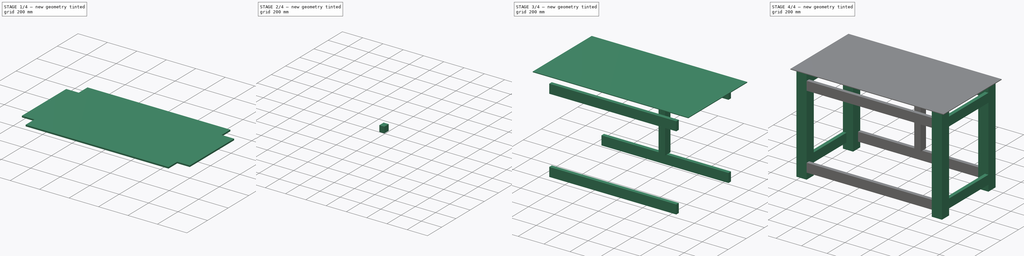
[diagram: build sequence overview — one tinted view per stage of 4, left to right]
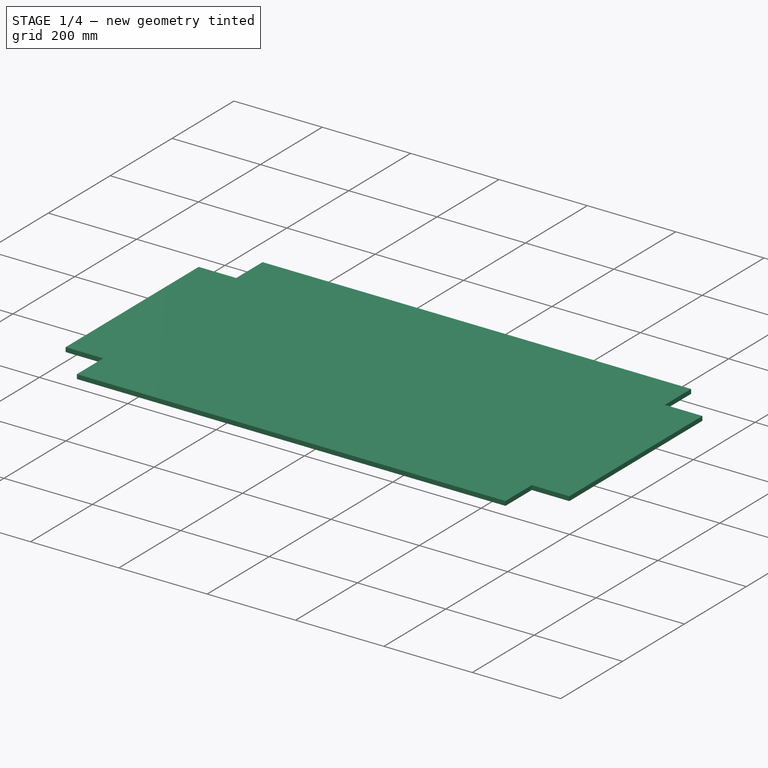
[diagram: stage 1 of 4 — iso view after this stage's code; geometry added in this stage tinted green]
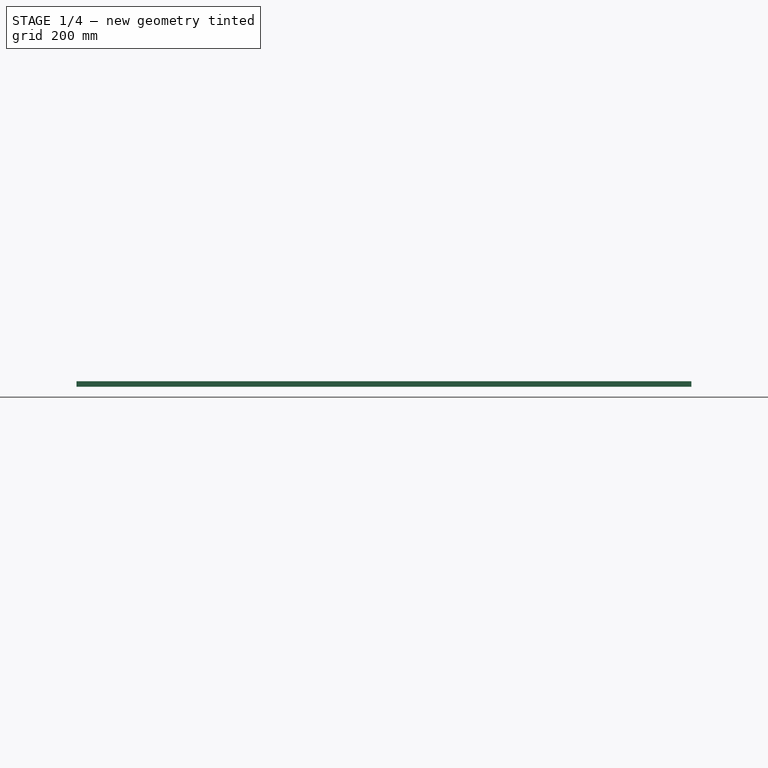
[diagram: stage 1 of 4 — front view after this stage's code; geometry added in this stage tinted green]
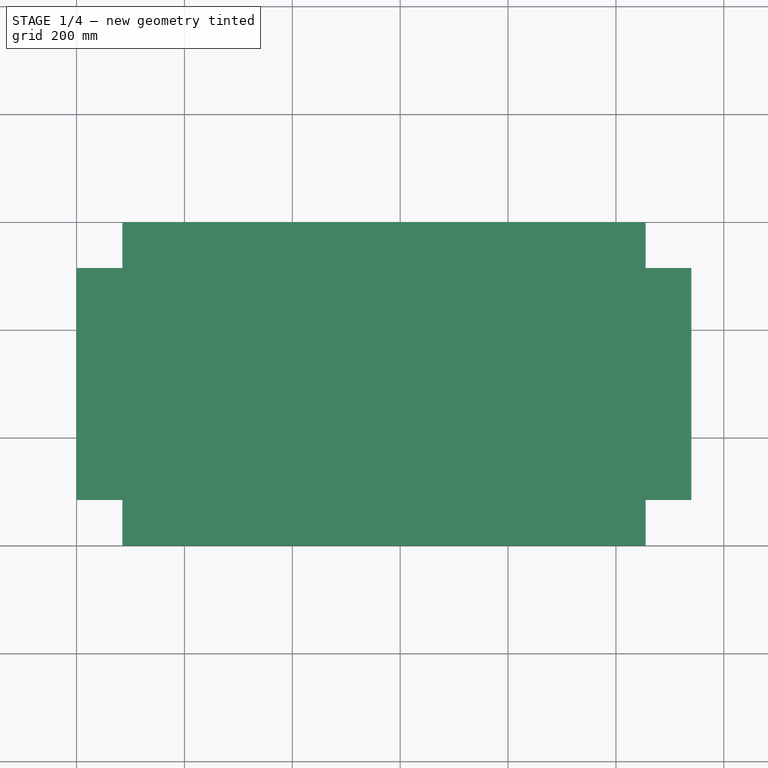
[diagram: stage 1 of 4 — top view after this stage's code; geometry added in this stage tinted green]
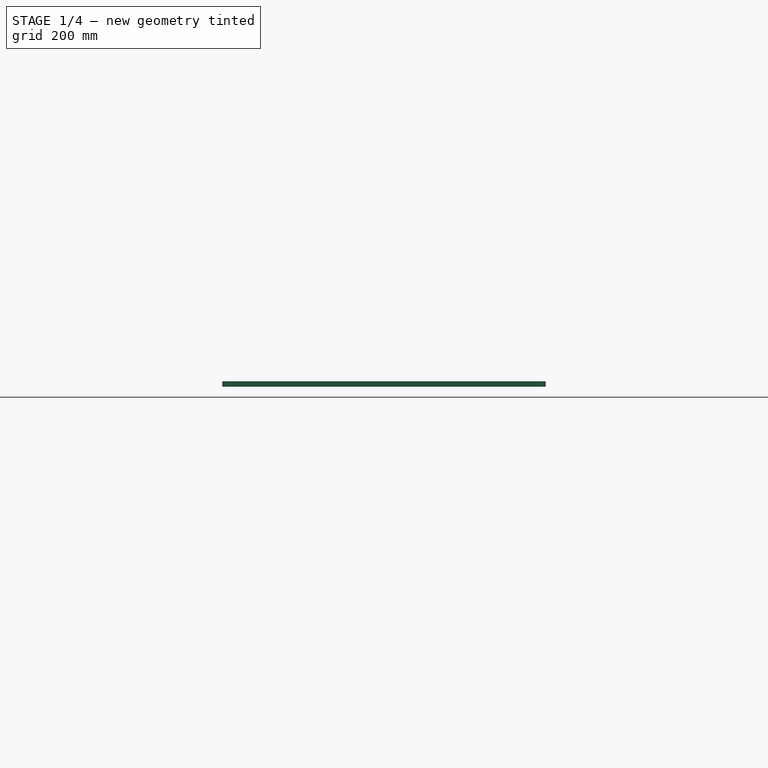
[diagram: stage 1 of 4 — right view after this stage's code; geometry added in this stage tinted green]
FCSTD DOCUMENT  (FreeCAD 0.19R)
Label: BANCADA
License: All rights reserved
LicenseURL: http://en.wikipedia.org/wiki/All_rights_reserved
objects: Sketcher::SketchObject×8, Part::Extrusion×8, App::LinkElement×4, Part::FeaturePython×3, Spreadsheet::Sheet×1, Part::MultiFuse×1, Part::Mirroring×1
note: 20 computed .brp shape members not serialized (recipe doc carries the construction recipe); baked Part::Feature solids carry a one-line shape summary decoded from their .brp

FEATURE [Spreadsheet::Sheet] Spreadsheet
  cells = B1=Ponto de insercão; E1=Dimensão da peça; H1=Quantidade; K1=Deslocamento de array; B2=px; C2=py; D2=pz; E2=lx; F2=ly; G2=lz; H2=nx; I2=ny; J2=nz; K2=dx; L2=dy; M2=dz; A3=Mesa; B3(mesapx)=; C3(mesapy)=; D3(mesapz)=; E3(mesalx)=1200; F3(mesaly)=650; G3(mesalz)=5; H3(mesanx)=; I3(mesany)=; J3(mesanz)=; K3(mesadx)==(pilardx + pilarlx) / 2; L3(mesady)==(pilardy + pilarly) / 2; M3(mesadz)=0; A4=VigaH; B4(vigaHpx)=0; C4(vigaHpy)=0; D4(vigaHpz)=50; E4(vigaHlx)==pilardx - pilarlx; F4(vigaHly)=27.5; G4(VigaHlz)=70; H4(vigaHnx)=2; I4(vigaHny)=2; J4(vigaHnz)=2; K4(vigaHdx)=0; L4(vigaHdy)=0; M4(vigaHdz)==510 + 70; A5=VigaV; B5(vigaVpx)=0; C5(vigaVpy)=0; D5(vigaVpz)==vigaHpz; E5(vigaVlx)==vigaHly; F5(vigaVly)==pilardy - pilarly; G5(vigaVlz)==VigaHlz; H5(vigaVnx)==vigaHnx; I5(vigaVny)==vigaHny; J5(vigaVnz)==vigaHnz; K5(vigaVdx)==vigaHdx; L5(vigaVdy)==vigaHdy; M5(vigaVdz)==vigaHdz; A6=Pilar; B6(pilarpx)=0; C6(pilarpy)=0; D6(pilarpz)=0; E6(pilarlx)=80; F6(pilarly)=80; G6(pilarlz)=760; H6(pilarnx)=2; I6(pilarny)=2; J6(pilarnz)=1; K6(pilardx)==mesalx - beiralLx; L6(pilardy)==mesaly - beiralLy; M6(pilardz)=0; A7=Beiral; E7(beiralLx)=140; F7(beiralLy)=130; A8=Fundo; G8(fundoLz)=10; A9=Montante inf; B9(montantepx)=; C9(montantepy)=; D9(montantepz)=; E9(montantelx)=50; F9(montantely)=60; G9(montantelz)==vigaVdz - vigaVlz; H9(montantenx)=; I9(montanteny)=; J9(montantenz)=; K9(montantedx)=; L9(montantedy)=; M9(montantedz)=
FEATURE [Sketcher::SketchObject] Sketch
  expr: Constraints[10] = Spreadsheet.pilarlx
  expr: Constraints[9] = Spreadsheet.pilarly
  sketch-geometry (4):
    g0: LineSegment StartX=0 StartY=0 StartZ=0 EndX=80 EndY=0 EndZ=0
    g1: LineSegment StartX=80 StartY=0 StartZ=0 EndX=80 EndY=80 EndZ=0
    g2: LineSegment StartX=80 StartY=80 StartZ=0 EndX=0 EndY=80 EndZ=0
    g3: LineSegment StartX=0 StartY=80 StartZ=0 EndX=0 EndY=0 EndZ=0
  constraints (11):
    c: Coincident(g0,g1)
    c: Coincident(g1,g2)
    c: Coincident(g2,g3)
    c: Coincident(g3,g0)
    c: Horizontal(g0)
    c: Horizontal(g2)
    c: Vertical(g1)
    c: Vertical(g3)
    c: Coincident(g0,g-1)
    c: DistanceY(g3,g3) = 80
    c: DistanceX(g0,g0) = 80
FEATURE [Part::Extrusion] Extrude
  Base = -> Sketch
  Dir = (0,0,1)
  DirMode = 2
  FaceMakerClass = Part::FaceMakerBullseye
  LengthFwd = 760
  LengthRev = 0
  Solid = true
  Symmetric = false
  expr: LengthFwd = Spreadsheet.pilarlz
  expr: .Placement.Base.z = Spreadsheet.pilarpz
  expr: .Placement.Base.y = Spreadsheet.pilarpy
  expr: .Placement.Base.x = Spreadsheet.pilarpx
FEATURE [Sketcher::SketchObject] Sketch001
  MapMode = 5
  Placement = pos=(80,0,0) rot=(0.57735,0.57735,0.57735;2.0944rad)
  Support = -> [Extrude]
  expr: Constraints[11] = Spreadsheet.vigaHly
  expr: Constraints[12] = Spreadsheet.VigaHlz
  expr: Constraints[13] = Spreadsheet.vigaHpz
  sketch-geometry (5):
    g0: LineSegment [constr] StartX=0 StartY=0 StartZ=0 EndX=0 EndY=50 EndZ=0
    g1: LineSegment StartX=0 StartY=50 StartZ=0 EndX=27.5 EndY=50 EndZ=0
    g2: LineSegment StartX=27.5 StartY=50 StartZ=0 EndX=27.5 EndY=120 EndZ=0
    g3: LineSegment StartX=27.5 StartY=120 StartZ=0 EndX=0 EndY=120 EndZ=0
    g4: LineSegment StartX=0 StartY=120 StartZ=0 EndX=0 EndY=50 EndZ=0
  constraints (14):
    c: Coincident(g0,g-1)
    c: PointOnObject(g0,g-2)
    c: Coincident(g1,g2)
    c: Coincident(g2,g3)
    c: Coincident(g3,g4)
    c: Coincident(g4,g1)
    c: Horizontal(g1)
    c: Horizontal(g3)
    c: Vertical(g2)
    c: Vertical(g4)
    c: Coincident(g1,g0)
    c: DistanceX(g3,g3) = 27.5
    c: DistanceY(g4,g4) = 70
    c: DistanceY(g0,g0) = 50
FEATURE [Part::Extrusion] Extrude001  label="VigaH"
  Base = -> Sketch001
  Dir = (1,0,0)
  DirMode = 0
  FaceMakerClass = Part::FaceMakerBullseye
  LengthFwd = 980
  LengthRev = 0
  Solid = true
  Symmetric = false
  expr: LengthFwd = Spreadsheet.vigaHlx
FEATURE [Sketcher::SketchObject] Sketch004
  MapMode = 5
  Placement = pos=(0,0,120) rot=(0,0,1;0rad)
  Support = -> [Extrude001]
  expr: Constraints[49] = Spreadsheet.pilarlx + 5
  expr: Constraints[50] = Spreadsheet.pilarly + 5
  expr: Constraints[51] = 2 * Spreadsheet.pilarlx + Spreadsheet.vigaHlx
  expr: Constraints[52] = 2 * Spreadsheet.pilarly + Spreadsheet.vigaVly
  sketch-geometry (20):
    g0: LineSegment [constr] StartX=0 StartY=0 StartZ=0 EndX=85 EndY=0 EndZ=0
    g1: LineSegment StartX=85 StartY=0 StartZ=0 EndX=85 EndY=85 EndZ=0
    g2: LineSegment StartX=85 StartY=85 StartZ=0 EndX=0 EndY=85 EndZ=0
    g3: LineSegment [constr] StartX=0 StartY=85 StartZ=0 EndX=0 EndY=0 EndZ=0
    g4: LineSegment [constr] StartX=1140 StartY=600 StartZ=0 EndX=1055 EndY=600 EndZ=0
    g5: LineSegment StartX=1055 StartY=600 StartZ=0 EndX=1055 EndY=515 EndZ=0
    g6: LineSegment StartX=1055 StartY=515 StartZ=0 EndX=1140 EndY=515 EndZ=0
    g7: LineSegment [constr] StartX=1140 StartY=515 StartZ=0 EndX=1140 EndY=600 EndZ=0
    g8: LineSegment [constr] StartX=1140 StartY=0 StartZ=0 EndX=1055 EndY=0 EndZ=0
    g9: LineSegment StartX=1055 StartY=0 StartZ=0 EndX=1055 EndY=85 EndZ=0
    g10: LineSegment StartX=1055 StartY=85 StartZ=0 EndX=1140 EndY=85 EndZ=0
    g11: LineSegment [constr] StartX=1140 StartY=85 StartZ=0 EndX=1140 EndY=0 EndZ=0
    g12: LineSegment [constr] StartX=0 StartY=600 StartZ=0 EndX=85 EndY=600 EndZ=0
    g13: LineSegment StartX=85 StartY=600 StartZ=0 EndX=85 EndY=515 EndZ=0
    g14: LineSegment StartX=85 StartY=515 StartZ=0 EndX=0 EndY=515 EndZ=0
    g15: LineSegment [constr] StartX=0 StartY=515 StartZ=0 EndX=0 EndY=600 EndZ=0
    g16: LineSegment StartX=0 StartY=515 StartZ=0 EndX=0 EndY=85 EndZ=0
    g17: LineSegment StartX=85 StartY=600 StartZ=0 EndX=1055 EndY=600 EndZ=0
    g18: LineSegment StartX=1140 StartY=515 StartZ=0 EndX=1140 EndY=85 EndZ=0
    g19: LineSegment StartX=85 StartY=0 StartZ=0 EndX=1055 EndY=0 EndZ=0
  constraints (55):
    c: Coincident(g0,g1)
    c: Coincident(g1,g2)
    c: Coincident(g2,g3)
    c: Coincident(g3,g0)
    c: Horizontal(g0)
    c: Horizontal(g2)
    c: Vertical(g1)
    c: Vertical(g3)
    c: Coincident(g0,g-1)
    c: Coincident(g4,g5)
    c: Coincident(g5,g6)
    c: Coincident(g6,g7)
    c: Coincident(g7,g4)
    c: Horizontal(g4)
    c: Horizontal(g6)
    c: Vertical(g5)
    c: Vertical(g7)
    c: Coincident(g8,g9)
    c: Coincident(g9,g10)
    c: Coincident(g10,g11)
    c: Coincident(g11,g8)
    c: Horizontal(g8)
    c: Horizontal(g10)
    c: Vertical(g9)
    c: Vertical(g11)
    c: PointOnObject(g8,g-1)
    c: Coincident(g12,g13)
    c: Coincident(g13,g14)
    c: Coincident(g14,g15)
    c: Coincident(g15,g12)
    c: Horizontal(g12)
    c: Horizontal(g14)
    c: Vertical(g13)
    c: Vertical(g15)
    c: PointOnObject(g12,g-2)
    c: Equal(g13,g5)
    c: Equal(g5,g9)
    c: Equal(g9,g1)
    c: Equal(g14,g2)
    c: Equal(g2,g6)
    c: Equal(g6,g10)
    c: Coincident(g16,g14)
    c: Coincident(g16,g2)
    c: Coincident(g17,g13)
    c: Coincident(g17,g5)
    c: Horizontal(g17)
    c: Coincident(g18,g6)
    c: Coincident(g18,g10)
    c: Vertical(g18)
    c: DistanceX(g2,g2) = 85
    c: DistanceY(g1,g1) = 85
    c: DistanceX(g-1,g8) = 1140
    c: DistanceY(g-1,g12) = 600
    c: Coincident(g19,g1)
    c: Coincident(g19,g9)
FEATURE [Part::Extrusion] Extrude004  label="Fundo"
  Base = -> Sketch004
  Dir = (0,0,1)
  DirMode = 2
  FaceMakerClass = Part::FaceMakerBullseye
  LengthFwd = 10
  LengthRev = 0
  Solid = true
  Symmetric = false
  expr: .Placement.Base.x = Spreadsheet.pilarpx
  expr: .Placement.Base.y = Spreadsheet.pilarpy
  expr: .Placement.Base.z = Spreadsheet.pilarpz
  expr: .Dir.z = Spreadsheet.fundoLz
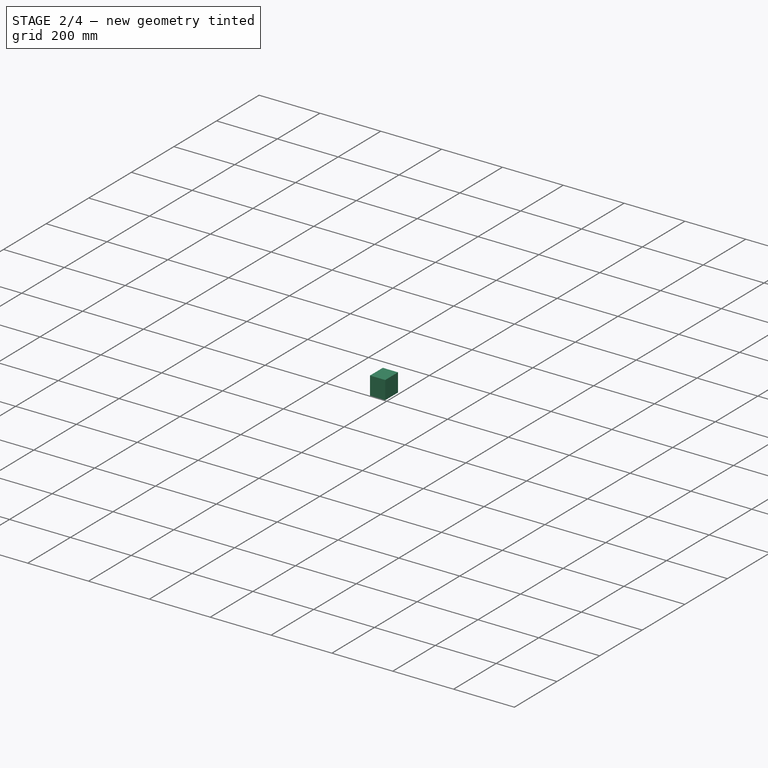
[diagram: stage 2 of 4 — iso view after this stage's code; geometry added in this stage tinted green]
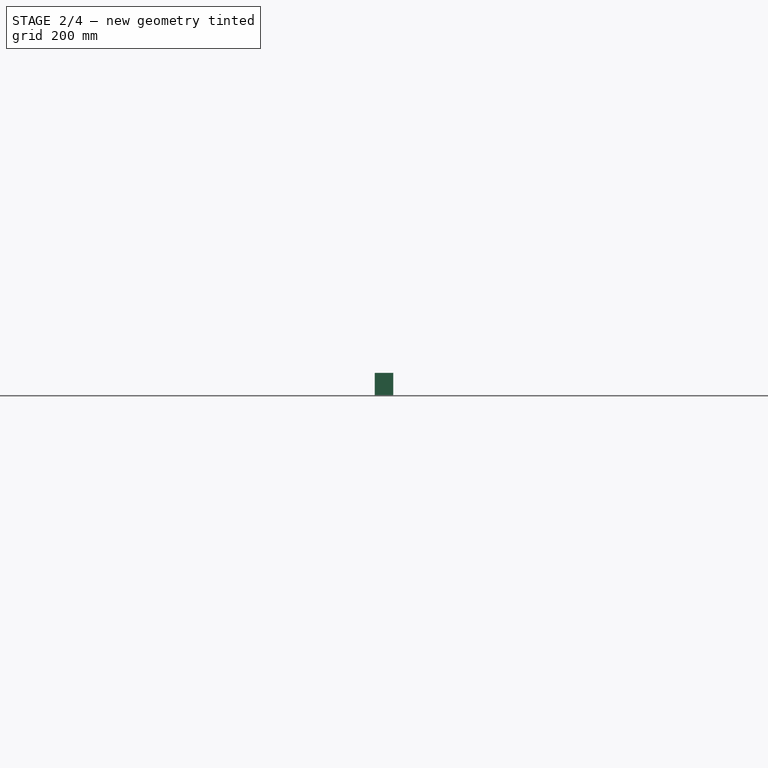
[diagram: stage 2 of 4 — front view after this stage's code; geometry added in this stage tinted green]
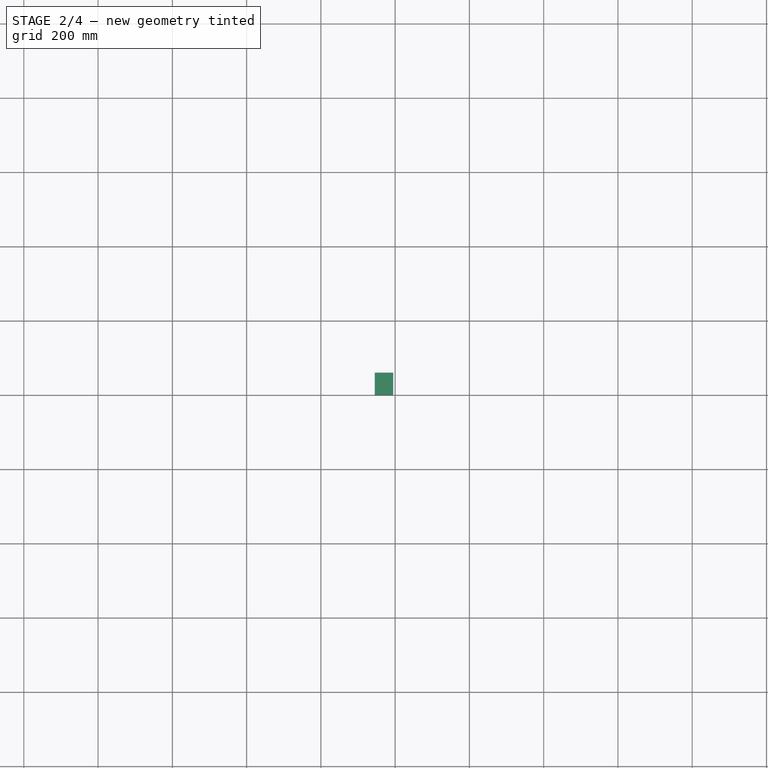
[diagram: stage 2 of 4 — top view after this stage's code; geometry added in this stage tinted green]
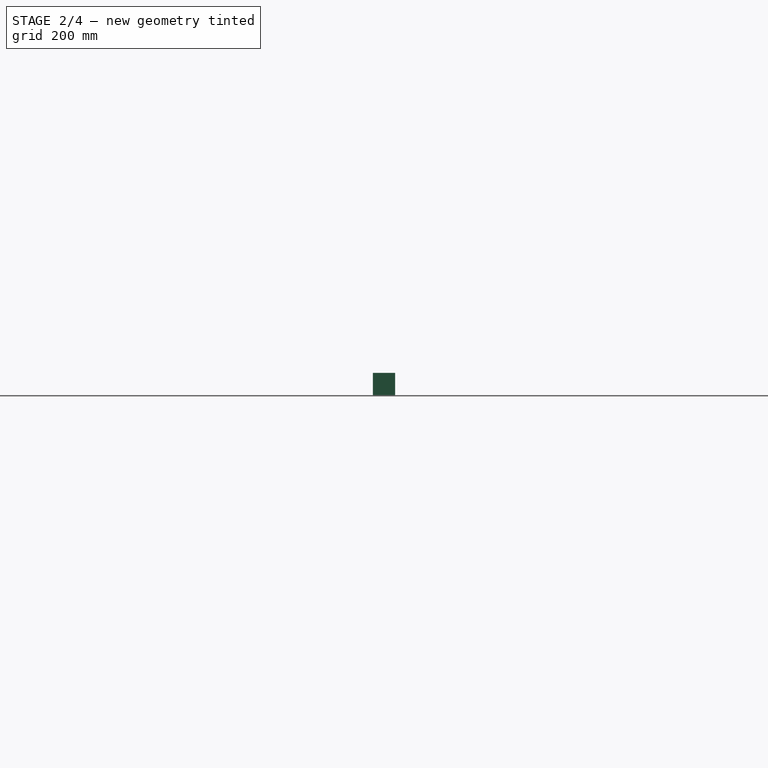
[diagram: stage 2 of 4 — right view after this stage's code; geometry added in this stage tinted green]
FEATURE [Sketcher::SketchObject] Sketch005
  ExternalGeometry = -> [Extrude001]
  MapMode = 5
  Placement = pos=(0,0,130) rot=(0,0,1;0rad)
  Support = -> [Extrude004]
  expr: Constraints[8] = Spreadsheet.montantelx
  expr: Constraints[9] = Spreadsheet.montantely
  expr: Constraints[10] = Spreadsheet.pilarlx + (Spreadsheet.vigaHlx - Spreadsheet.montantelx) / 2
  sketch-geometry (4):
    g0: LineSegment StartX=545 StartY=60 StartZ=0 EndX=595 EndY=60 EndZ=0
    g1: LineSegment StartX=595 StartY=60 StartZ=0 EndX=595 EndY=0 EndZ=0
    g2: LineSegment StartX=595 StartY=0 StartZ=0 EndX=545 EndY=0 EndZ=0
    g3: LineSegment StartX=545 StartY=0 StartZ=0 EndX=545 EndY=60 EndZ=0
  constraints (12):
    c: Coincident(g0,g1)
    c: Coincident(g1,g2)
    c: Coincident(g2,g3)
    c: Coincident(g3,g0)
    c: Horizontal(g0)
    c: Horizontal(g2)
    c: Vertical(g1)
    c: Vertical(g3)
    c: DistanceX(g0,g0) = 50
    c: DistanceY(g3,g3) = 60
    c: DistanceX(g-1,g2) = 545
    c: PointOnObject(g2,g-3)
FEATURE [Part::Extrusion] Extrude005  label="Montante"
  Base = -> Sketch005
  Dir = (0,0,1)
  DirMode = 2
  FaceMakerClass = Part::FaceMakerBullseye
  LengthFwd = 500
  LengthRev = 0
  Solid = true
  Symmetric = false
  expr: LengthFwd = Spreadsheet.montantelz - Spreadsheet.fundoLz
FEATURE [Sketcher::SketchObject] Sketch006
  ExternalGeometry = -> [Extrude005]
  MapMode = 5
  Placement = pos=(0,0,630) rot=(0,0,1;0rad)
  Support = -> [Extrude005]
  sketch-geometry (4):
    g0: LineSegment StartX=595 StartY=60 StartZ=0 EndX=545 EndY=60 EndZ=0
    g1: LineSegment StartX=545 StartY=60 StartZ=0 EndX=545 EndY=30 EndZ=0
    g2: LineSegment StartX=545 StartY=30 StartZ=0 EndX=595 EndY=30 EndZ=0
    g3: LineSegment StartX=595 StartY=30 StartZ=0 EndX=595 EndY=60 EndZ=0
  constraints (10):
    c: Coincident(g0,g1)
    c: Coincident(g1,g2)
    c: Coincident(g2,g3)
    c: Coincident(g3,g0)
    c: Horizontal(g0)
    c: Horizontal(g2)
    c: Vertical(g1)
    c: Vertical(g3)
    c: Coincident(g0,g-4)
    c: Symmetric(g-3,g-3,g1)
FEATURE [Part::Extrusion] Extrude006  label="Montante-corte"
  Base = -> Sketch006
  Dir = (0,0,1)
  DirMode = 2
  FaceMakerClass = Part::FaceMakerBullseye
  LengthFwd = 70
  LengthRev = 0
  Solid = true
  Symmetric = false
  expr: LengthFwd = Spreadsheet.VigaHlz
FEATURE [Sketcher::SketchObject] Sketch007
  ExternalGeometry = -> [Extrude005,Extrude006]
  MapMode = 5
  Placement = pos=(0,0,700) rot=(0,0,1;0rad)
  Support = -> [Extrude006]
  sketch-geometry (4):
    g0: LineSegment StartX=545 StartY=60 StartZ=0 EndX=595 EndY=60 EndZ=0
    g1: LineSegment StartX=595 StartY=60 StartZ=0 EndX=595 EndY=0 EndZ=0
    g2: LineSegment StartX=595 StartY=0 StartZ=0 EndX=545 EndY=0 EndZ=0
    g3: LineSegment StartX=545 StartY=0 StartZ=0 EndX=545 EndY=60 EndZ=0
  constraints (10):
    c: Coincident(g0,g1)
    c: Coincident(g1,g2)
    c: Coincident(g2,g3)
    c: Coincident(g3,g0)
    c: Horizontal(g0)
    c: Horizontal(g2)
    c: Vertical(g1)
    c: Vertical(g3)
    c: Coincident(g0,g-4)
    c: Coincident(g1,g-3)
FEATURE [Part::Extrusion] Extrude007  label="Montante-cabeca"
  Base = -> Sketch007
  Dir = (0,0,1)
  DirMode = 2
  FaceMakerClass = Part::FaceMakerBullseye
  LengthFwd = 60
  LengthRev = 0
  Solid = true
  Symmetric = false
  expr: LengthFwd = Spreadsheet.pilarlz - Spreadsheet.vigaHpz - Spreadsheet.vigaHdz - Spreadsheet.VigaHlz
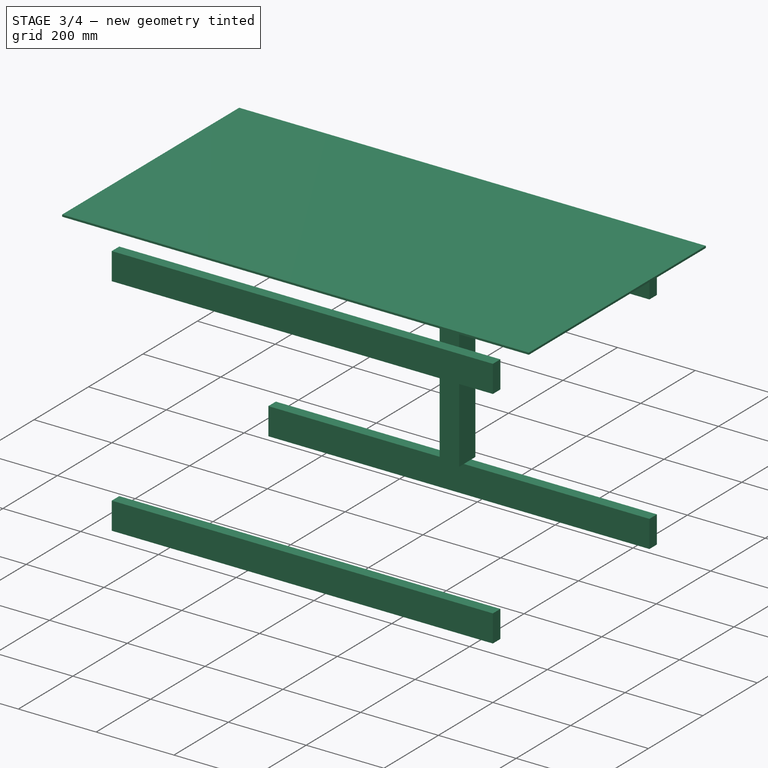
[diagram: stage 3 of 4 — iso view after this stage's code; geometry added in this stage tinted green]
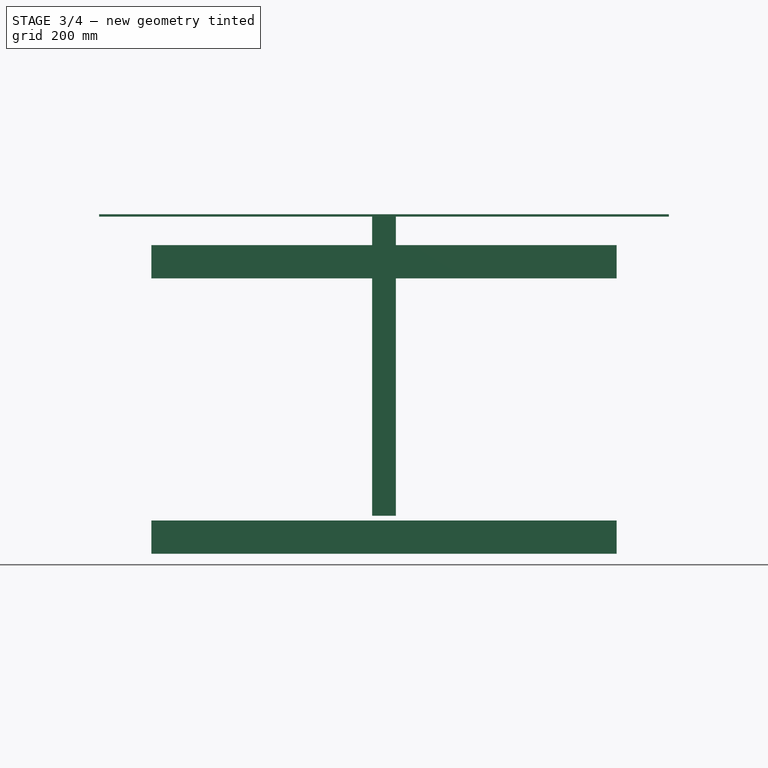
[diagram: stage 3 of 4 — front view after this stage's code; geometry added in this stage tinted green]
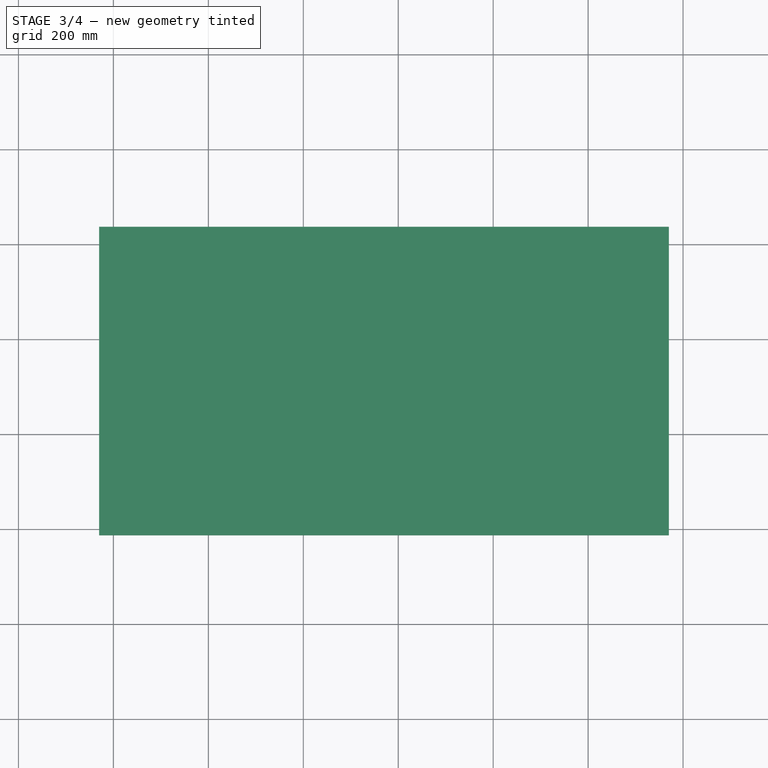
[diagram: stage 3 of 4 — top view after this stage's code; geometry added in this stage tinted green]
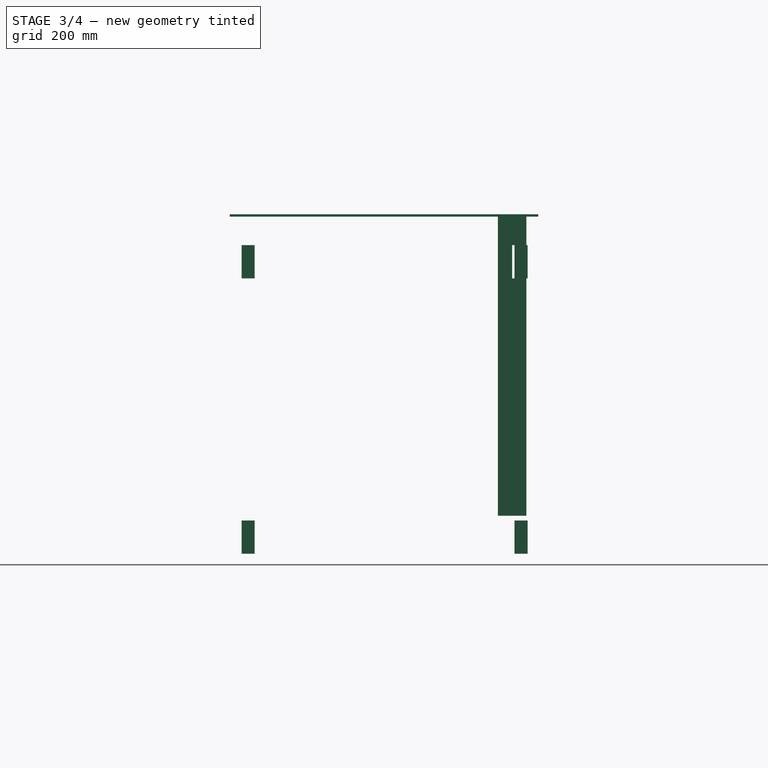
[diagram: stage 3 of 4 — right view after this stage's code; geometry added in this stage tinted green]
FEATURE [Sketcher::SketchObject] Sketch003
  MapMode = 5
  Placement = pos=(0,0,760) rot=(0,0,1;0rad)
  Support = -> [Extrude]
  expr: Constraints[17] = Spreadsheet.mesalx
  expr: Constraints[18] = Spreadsheet.mesaly
  expr: Constraints[19] = Spreadsheet.mesadx
  expr: Constraints[20] = Spreadsheet.mesady
  sketch-geometry (8):
    g0: LineSegment StartX=-30 StartY=625 StartZ=0 EndX=1170 EndY=625 EndZ=0
    g1: LineSegment StartX=1170 StartY=625 StartZ=0 EndX=1170 EndY=-25 EndZ=0
    g2: LineSegment StartX=1170 StartY=-25 StartZ=0 EndX=-30 EndY=-25 EndZ=0
    g3: LineSegment StartX=-30 StartY=-25 StartZ=0 EndX=-30 EndY=625 EndZ=0
    g4: LineSegment [constr] StartX=-30 StartY=300 StartZ=0 EndX=570 EndY=300 EndZ=0
    g5: LineSegment [constr] StartX=570 StartY=300 StartZ=0 EndX=1170 EndY=300 EndZ=0
    g6: LineSegment [constr] StartX=570 StartY=300 StartZ=0 EndX=570 EndY=625 EndZ=0
    g7: LineSegment [constr] StartX=570 StartY=300 StartZ=0 EndX=570 EndY=-25 EndZ=0
  constraints (21):
    c: Coincident(g0,g1)
    c: Coincident(g1,g2)
    c: Coincident(g2,g3)
    c: Coincident(g3,g0)
    c: Horizontal(g0)
    c: Horizontal(g2)
    c: Vertical(g1)
    c: Vertical(g3)
    c: Horizontal(g4)
    c: Coincident(g5,g4)
    c: Coincident(g6,g4)
    c: Vertical(g6)
    c: Coincident(g7,g4)
    c: Symmetric(g3,g3,g4)
    c: Symmetric(g1,g1,g5)
    c: Symmetric(g0,g0,g6)
    c: Symmetric(g2,g2,g7)
    c: DistanceX(g0,g0) = 1200
    c: DistanceY(g1,g1) = 650
    c: DistanceX(g-1,g4) = 570
    c: DistanceY(g-1,g4) = 300
FEATURE [Part::Extrusion] Extrude003  label="Mesa"
  Base = -> Sketch003
  Dir = (0,0,1)
  DirMode = 2
  FaceMakerClass = Part::FaceMakerBullseye
  LengthFwd = 5
  LengthRev = 0
  Solid = true
  Symmetric = false
  expr: LengthFwd = Spreadsheet.mesalz
FEATURE [App::LinkElement] Array002_i0
  LinkedObject = -> Extrude001
FEATURE [App::LinkElement] Array002_i1
  LinkPlacement = pos=(0,0,580) rot=(0,0,1;0rad)
  LinkedObject = -> Extrude001
  Placement = pos=(0,0,580) rot=(0,0,1;0rad)
FEATURE [App::LinkElement] Array002_i2
  LinkPlacement = pos=(0,575,0) rot=(0,0,1;0rad)
  LinkedObject = -> Extrude001
  Placement = pos=(0,575,0) rot=(0,0,1;0rad)
FEATURE [App::LinkElement] Array002_i3
  LinkPlacement = pos=(0,575,580) rot=(0,0,1;0rad)
  LinkedObject = -> Extrude001
  Placement = pos=(0,575,580) rot=(0,0,1;0rad)
FEATURE [Part::FeaturePython] Array002  label="VigaH001"  # Draft array (typed FeaturePython)
  Angle = 360
  ArrayType = 0
  Axis = (0,0,1)
  Base = -> Extrude001
  Center = (0,0,0)
  Count = 4
  ElementList = -> [Array002_i0,Array002_i1,Array002_i2,Array002_i3]
  ExpandArray = true
  Fuse = true
  IntervalAxis = (0,0,0)
  IntervalX = (100,0,0)
  IntervalY = (0,575,0)
  IntervalZ = (0,0,580)
  NumberCircles = 3
  NumberPolar = 5
  NumberX = 1
  NumberY = 2
  NumberZ = 2
  RadialDistance = 50
  Symmetry = 1
  TangentialDistance = 25
  expr: .IntervalZ.z = Spreadsheet.vigaHdz
  expr: .IntervalY.y = Spreadsheet.vigaVly + 2 * Spreadsheet.vigaHly + Spreadsheet.pilarly
FEATURE [Part::MultiFuse] Fusion
  Refine = true
  Shapes = -> [Extrude005,Extrude006,Extrude007]
FEATURE [Part::Mirroring] mirror  label="Fusion (mirrored)"
  Base = (1140,300,120)
  Normal = (0,1,0)
  Source = -> Fusion
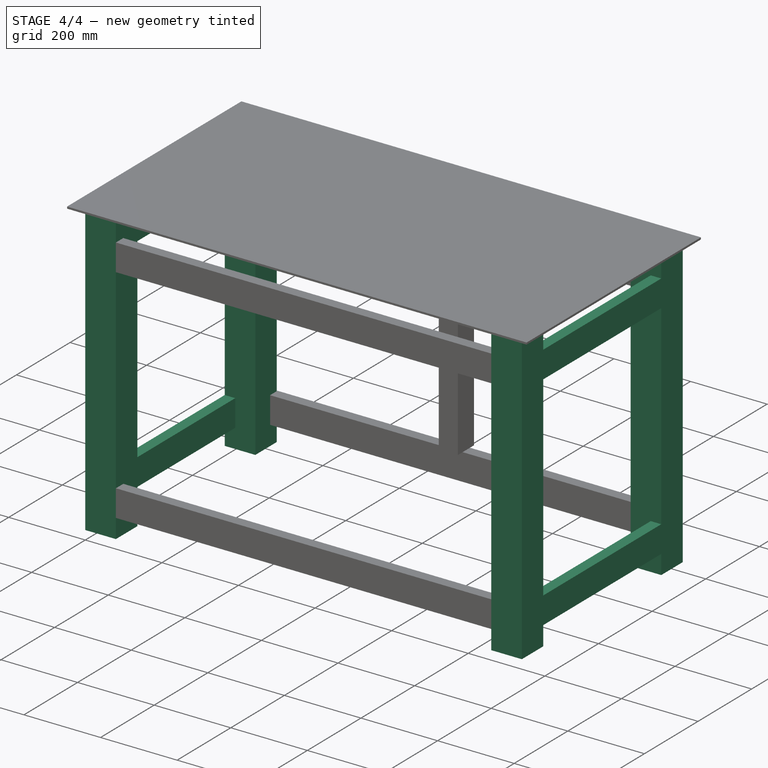
[diagram: stage 4 of 4 — iso view after this stage's code; geometry added in this stage tinted green]
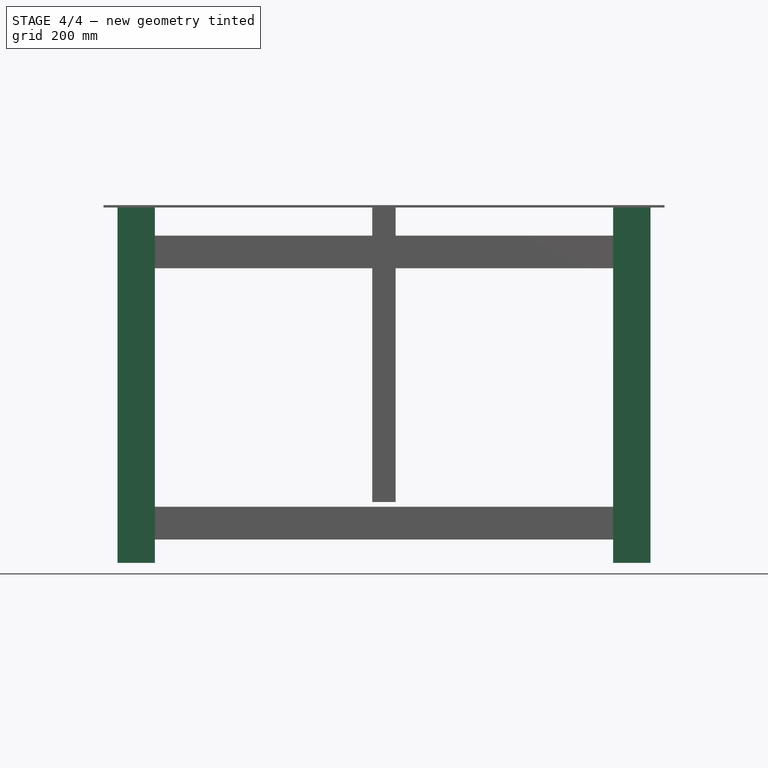
[diagram: stage 4 of 4 — front view after this stage's code; geometry added in this stage tinted green]
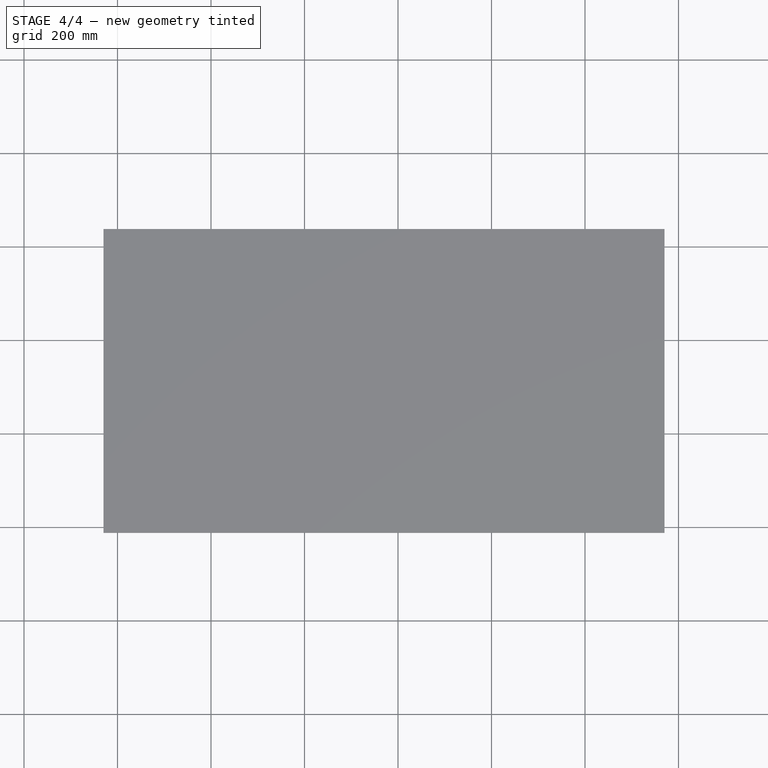
[diagram: stage 4 of 4 — top view after this stage's code; geometry added in this stage tinted green]
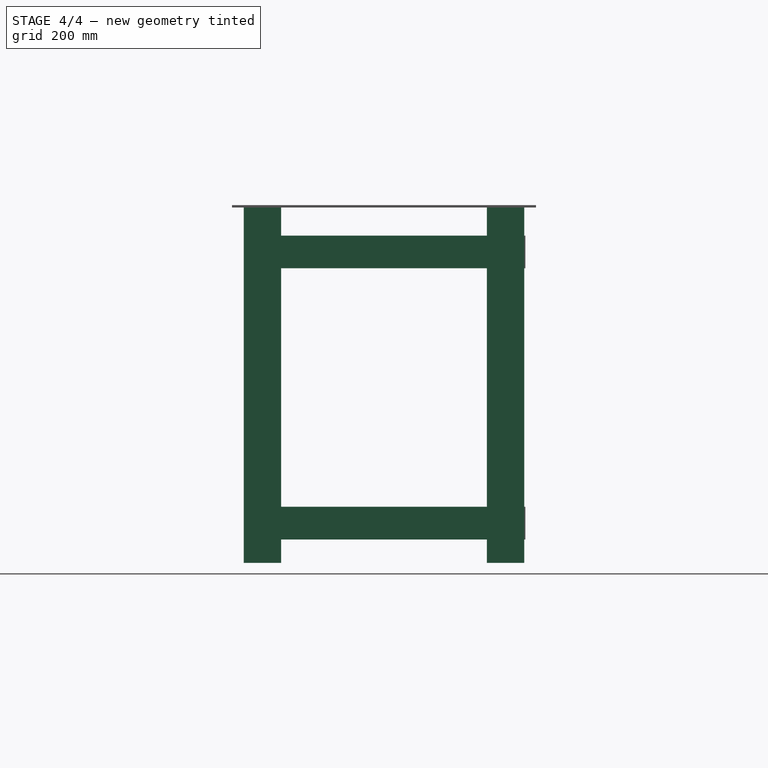
[diagram: stage 4 of 4 — right view after this stage's code; geometry added in this stage tinted green]
FEATURE [Part::FeaturePython] Array  label="Pilar"  # Draft array (typed FeaturePython)
  Angle = 360
  ArrayType = 0
  Axis = (0,0,1)
  Base = -> Extrude
  Center = (0,0,0)
  Count = 4
  ExpandArray = false
  Fuse = false
  IntervalAxis = (0,0,0)
  IntervalX = (1060,0,0)
  IntervalY = (0,520,0)
  IntervalZ = (0,0,100)
  NumberCircles = 3
  NumberPolar = 5
  NumberX = 2
  NumberY = 2
  NumberZ = 1
  PlacementList = 4 placements: [(0,0,0),(0,520,0),(1060,0,0),(1060,520,0)]
  RadialDistance = 50
  ScaleList = (4) [(1,1,1),(1,1,1),(1,1,1),(1,1,1)]
  Symmetry = 1
  TangentialDistance = 25
  expr: NumberZ = Spreadsheet.pilarnz
  expr: NumberY = Spreadsheet.pilarny
  expr: NumberX = Spreadsheet.pilarnx
  expr: .IntervalY.y = Spreadsheet.pilardy
  expr: .IntervalX.x = Spreadsheet.pilardx
FEATURE [Sketcher::SketchObject] Sketch002
  MapMode = 5
  Placement = pos=(0,80,0) rot=(0,0.707107,0.707107;3.14159rad)
  Support = -> [Extrude]
  expr: Constraints[11] = Spreadsheet.vigaVlx
  expr: Constraints[12] = Spreadsheet.vigaVlz
  expr: Constraints[13] = Spreadsheet.vigaVpz
  sketch-geometry (5):
    g0: LineSegment StartX=-27.5 StartY=120 StartZ=0 EndX=0 EndY=120 EndZ=0
    g1: LineSegment StartX=0 StartY=120 StartZ=0 EndX=0 EndY=50 EndZ=0
    g2: LineSegment StartX=0 StartY=50 StartZ=0 EndX=-27.5 EndY=50 EndZ=0
    g3: LineSegment StartX=-27.5 StartY=50 StartZ=0 EndX=-27.5 EndY=120 EndZ=0
    g4: LineSegment [constr] StartX=0 StartY=50 StartZ=0 EndX=0 EndY=0 EndZ=0
  constraints (14):
    c: Coincident(g0,g1)
    c: Coincident(g1,g2)
    c: Coincident(g2,g3)
    c: Coincident(g3,g0)
    c: Horizontal(g0)
    c: Horizontal(g2)
    c: Vertical(g1)
    c: Vertical(g3)
    c: PointOnObject(g1,g-2)
    c: Coincident(g4,g1)
    c: Coincident(g4,g-1)
    c: DistanceX(g0,g0) = 27.5
    c: DistanceY(g1,g1) = 70
    c: DistanceY(g4,g4) = 50
FEATURE [Part::Extrusion] Extrude002
  Base = -> Sketch002
  Dir = (0,1,0)
  DirMode = 0
  FaceMakerClass = Part::FaceMakerBullseye
  LengthFwd = 440
  LengthRev = 0
  Solid = true
  Symmetric = false
  expr: LengthFwd = Spreadsheet.vigaVly
FEATURE [Part::FeaturePython] Array001  label="VigaV"  # Draft array (typed FeaturePython)
  Angle = 360
  ArrayType = 0
  Axis = (0,0,1)
  Base = -> Extrude002
  Center = (0,0,0)
  Count = 4
  ExpandArray = false
  Fuse = true
  IntervalAxis = (0,0,0)
  IntervalX = (1112.5,0,0)
  IntervalY = (0,100,0)
  IntervalZ = (0,0,580)
  NumberCircles = 3
  NumberPolar = 5
  NumberX = 2
  NumberY = 1
  NumberZ = 2
  PlacementList = 4 placements: [(0,0,0),(0,0,580),(1112.5,0,0),(1112.5,0,580)]
  RadialDistance = 50
  ScaleList = (4) [(1,1,1),(1,1,1),(1,1,1),(1,1,1)]
  Symmetry = 1
  TangentialDistance = 25
  expr: .IntervalX.x = Spreadsheet.vigaHlx + 2 * Spreadsheet.pilarlx - Spreadsheet.vigaVlx
  expr: .IntervalZ.z = Spreadsheet.vigaVdz
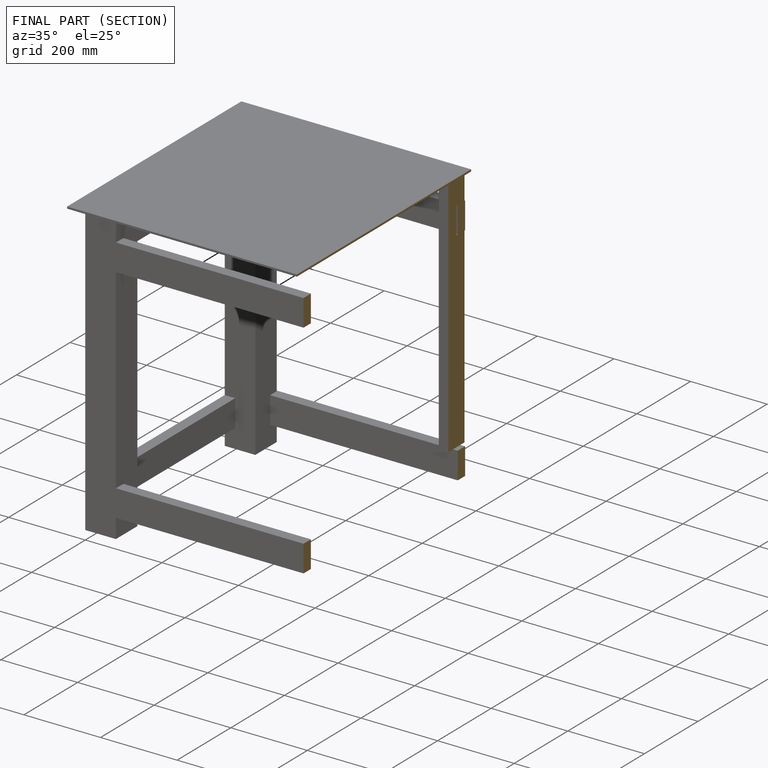
[diagram: finished part — half-section view (interior)]
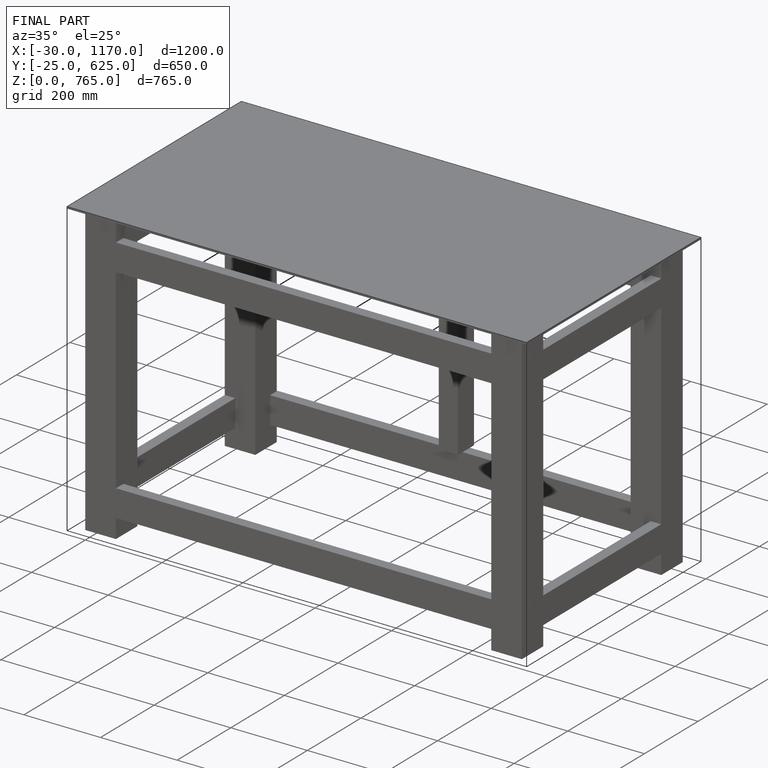
[diagram: finished part — iso view with bounding-box wireframe]
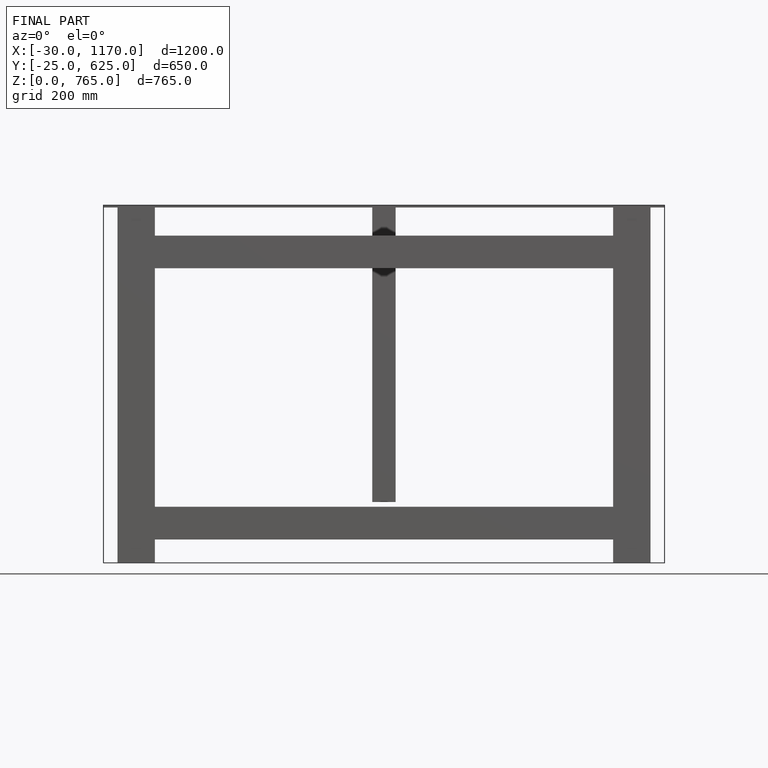
[diagram: finished part — front view with bounding-box wireframe]
